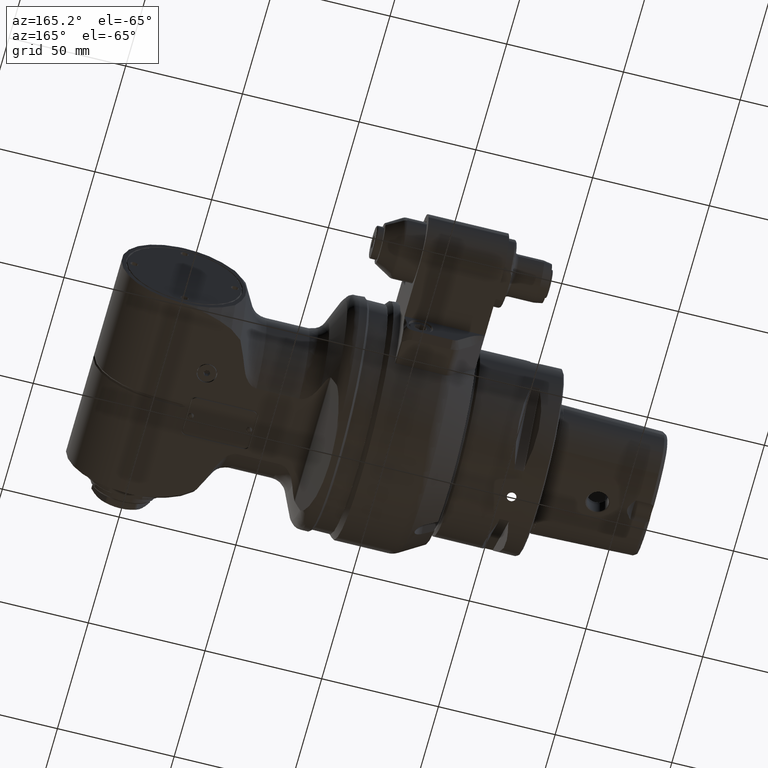
[diagram: clean part render]
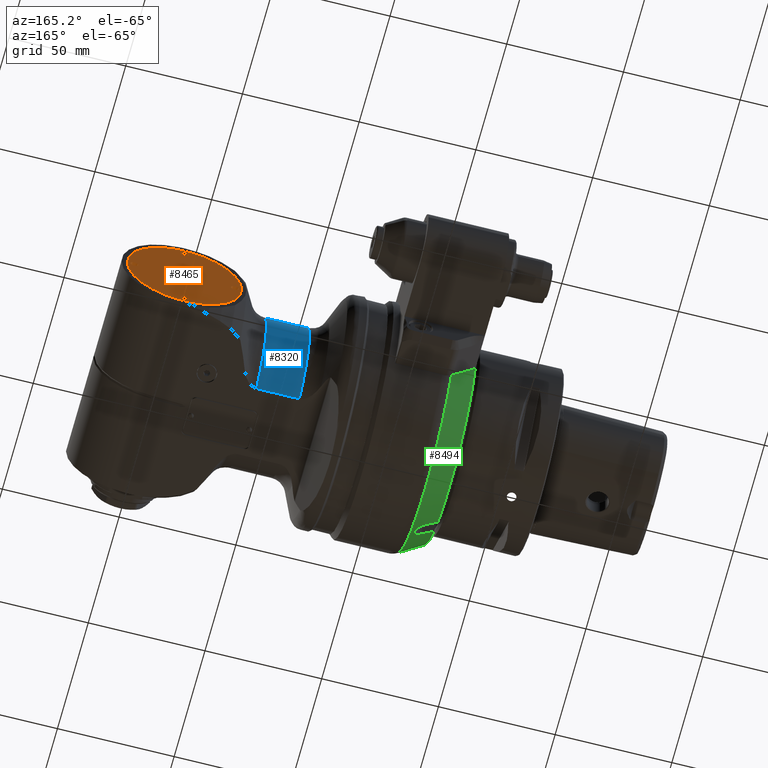
[diagram: same view with three faces highlighted in distinct colors, each labeled with its STEP entity id]
A machine part, auxiliary view with three faces highlighted in distinct colors.
Their STEP definitions:

[orange] entity #8465 — the highlighted planar face has unit normal (0, -1, -0).
#238=FACE_BOUND('',#1822,.T.);
#239=FACE_BOUND('',#1823,.T.);
#240=FACE_BOUND('',#1824,.T.);
#241=FACE_BOUND('',#1825,.T.);
#852=CIRCLE('',#9213,24.5);
#853=CIRCLE('',#9215,1.6);
#854=CIRCLE('',#9216,1.6);
#855=CIRCLE('',#9217,1.6);
#856=CIRCLE('',#9218,1.6);
#1279=FACE_OUTER_BOUND('',#1821,.T.);
#1821=EDGE_LOOP('',(#6313));
#1822=EDGE_LOOP('',(#6314));
#1823=EDGE_LOOP('',(#6315));
#1824=EDGE_LOOP('',(#6316));
#1825=EDGE_LOOP('',(#6317));
#3635=VERTEX_POINT('',#13618);
#3636=VERTEX_POINT('',#13622);
#3637=VERTEX_POINT('',#13624);
#3638=VERTEX_POINT('',#13626);
#3639=VERTEX_POINT('',#13628);
#4622=EDGE_CURVE('',#3635,#3635,#852,.T.);
#4623=EDGE_CURVE('',#3636,#3636,#853,.T.);
#4624=EDGE_CURVE('',#3637,#3637,#854,.T.);
#4625=EDGE_CURVE('',#3638,#3638,#855,.T.);
#4626=EDGE_CURVE('',#3639,#3639,#856,.T.);
#6313=ORIENTED_EDGE('',*,*,#4622,.T.);
#6314=ORIENTED_EDGE('',*,*,#4623,.T.);
#6315=ORIENTED_EDGE('',*,*,#4624,.T.);
#6316=ORIENTED_EDGE('',*,*,#4625,.T.);
#6317=ORIENTED_EDGE('',*,*,#4626,.T.);
#8125=PLANE('',#9214);
#8465=ADVANCED_FACE('',(#1279,#238,#239,#240,#241),#8125,.F.);
#9213=AXIS2_PLACEMENT_3D('',#13620,#10657,#10658);
#9214=AXIS2_PLACEMENT_3D('',#13621,#10659,#10660);
#9215=AXIS2_PLACEMENT_3D('',#13623,#10661,#10662);
#9216=AXIS2_PLACEMENT_3D('',#13625,#10663,#10664);
#9217=AXIS2_PLACEMENT_3D('',#13627,#10665,#10666);
#9218=AXIS2_PLACEMENT_3D('',#13629,#10667,#10668);
#10657=DIRECTION('center_axis',(0.,1.,0.));
#10658=DIRECTION('ref_axis',(1.,0.,0.));
#10659=DIRECTION('center_axis',(0.,-1.,0.));
#10660=DIRECTION('ref_axis',(-1.,0.,0.));
#10661=DIRECTION('center_axis',(0.,-1.,0.));
#10662=DIRECTION('ref_axis',(0.,0.,1.));
#10663=DIRECTION('center_axis',(0.,-1.,0.));
#10664=DIRECTION('ref_axis',(0.,0.,1.));
#10665=DIRECTION('center_axis',(0.,-1.,0.));
#10666=DIRECTION('ref_axis',(0.,0.,1.));
#10667=DIRECTION('center_axis',(0.,-1.,0.));
#10668=DIRECTION('ref_axis',(0.,0.,1.));
#13618=CARTESIAN_POINT('',(114.5,45.,0.));
#13620=CARTESIAN_POINT('Origin',(90.,45.,0.));
#13621=CARTESIAN_POINT('Origin',(68.675,45.,0.));
#13622=CARTESIAN_POINT('',(90.,45.,-23.1));
#13623=CARTESIAN_POINT('Origin',(90.,45.,-21.5));
#13624=CARTESIAN_POINT('',(68.5,45.,-1.6));
#13625=CARTESIAN_POINT('Origin',(68.5,45.,0.));
#13626=CARTESIAN_POINT('',(90.,45.,19.9));
#13627=CARTESIAN_POINT('Origin',(90.,45.,21.5));
#13628=CARTESIAN_POINT('',(111.5,45.,-1.6));
#13629=CARTESIAN_POINT('Origin',(111.5,45.,0.));

[blue] entity #8320 — the highlighted cylindrical surface (partial cylindrical patch) has radius 32 mm, axis along (-1, -0, 0).
#575=CYLINDRICAL_SURFACE('',#8929,32.);
#723=CIRCLE('',#8927,32.);
#725=CIRCLE('',#8930,32.);
#1134=FACE_OUTER_BOUND('',#1657,.T.);
#1657=EDGE_LOOP('',(#5661,#5662,#5663,#5664));
#2238=LINE('',#12387,#2805);
#2256=LINE('',#12728,#2823);
#2805=VECTOR('',#9850,18.39109797347);
#2823=VECTOR('',#9942,18.39109797347);
#3386=VERTEX_POINT('',#12371);
#3387=VERTEX_POINT('',#12386);
#3442=VERTEX_POINT('',#12714);
#3443=VERTEX_POINT('',#12727);
#4231=EDGE_CURVE('',#3387,#3386,#2238,.T.);
#4304=EDGE_CURVE('',#3443,#3442,#2256,.T.);
#4331=EDGE_CURVE('',#3387,#3442,#723,.T.);
#4333=EDGE_CURVE('',#3443,#3386,#725,.T.);
#5661=ORIENTED_EDGE('',*,*,#4331,.F.);
#5662=ORIENTED_EDGE('',*,*,#4231,.T.);
#5663=ORIENTED_EDGE('',*,*,#4333,.F.);
#5664=ORIENTED_EDGE('',*,*,#4304,.T.);
#8320=ADVANCED_FACE('',(#1134),#575,.T.);
#8927=AXIS2_PLACEMENT_3D('',#12859,#9965,#9966);
#8929=AXIS2_PLACEMENT_3D('',#12861,#9969,#9970);
#8930=AXIS2_PLACEMENT_3D('',#12862,#9971,#9972);
#9850=DIRECTION('',(1.,0.,0.));
#9942=DIRECTION('',(-1.,0.,0.));
#9965=DIRECTION('center_axis',(-1.,0.,0.));
#9966=DIRECTION('ref_axis',(0.,0.484122918275906,0.875000000000012));
#9969=DIRECTION('center_axis',(-1.,0.,0.));
#9970=DIRECTION('ref_axis',(0.,1.,1.22464679914735E-16));
#9971=DIRECTION('center_axis',(1.,0.,0.));
#9972=DIRECTION('ref_axis',(0.,1.,0.));
#12371=CARTESIAN_POINT('',(51.38119784648,15.49193338483,28.));
#12386=CARTESIAN_POINT('',(32.99009987301,15.49193338483,28.));
#12387=CARTESIAN_POINT('',(32.99009987301,15.49193338483,28.));
#12714=CARTESIAN_POINT('',(32.99009987301,15.49193338483,-28.));
#12727=CARTESIAN_POINT('',(51.38119784648,15.49193338483,-28.));
#12728=CARTESIAN_POINT('',(51.38119784648,15.49193338483,-28.));
#12859=CARTESIAN_POINT('Origin',(32.99009987301,0.,0.));
#12861=CARTESIAN_POINT('Origin',(41.64644709714,0.,0.));
#12862=CARTESIAN_POINT('Origin',(51.38119784648,0.,0.));

[green] entity #8494 — the highlighted conical surface has half-angle 30 deg.
#131=CONICAL_SURFACE('',#9274,46.96410161514,0.523598775598299);
#348=(
BOUNDED_CURVE()
B_SPLINE_CURVE(2,(#13730,#13731,#13732),.UNSPECIFIED.,.F.,.F.)
B_SPLINE_CURVE_WITH_KNOTS((3,3),(-2.43290769105801,-0.320305328668483),
 .UNSPECIFIED.)
CURVE()
GEOMETRIC_REPRESENTATION_ITEM()
RATIONAL_B_SPLINE_CURVE((1.03252076511009,1.03062027413364,1.00749895945509))
REPRESENTATION_ITEM('')
);
#453=B_SPLINE_CURVE_WITH_KNOTS('',3,(#13851,#13852,#13853,#13854,#13855,
#13856,#13857,#13858,#13859,#13860),.UNSPECIFIED.,.F.,.F.,(4,3,3,4),(0.,
0.3333333333333,0.6666666666667,1.),.UNSPECIFIED.);
#456=B_SPLINE_CURVE_WITH_KNOTS('',3,(#13913,#13914,#13915,#13916,#13917,
#13918,#13919,#13920,#13921,#13922,#13923,#13924,#13925,#13926,#13927,#13928,
#13929,#13930),.UNSPECIFIED.,.F.,.F.,(4,2,2,2,2,2,2,2,4),(1.11206982951625,
1.24885677734264,1.4029266724495,1.5444028479349,1.68587902342029,1.82735519890569,
1.96883137439109,2.12290126949794,2.25968821732541),.UNSPECIFIED.);
#458=B_SPLINE_CURVE_WITH_KNOTS('',3,(#13952,#13953,#13954,#13955,#13956,
#13957,#13958,#13959,#13960,#13961),.UNSPECIFIED.,.F.,.F.,(4,3,3,4),(0.,
0.3333333333333,0.6666666666667,1.),.UNSPECIFIED.);
#459=B_SPLINE_CURVE_WITH_KNOTS('',3,(#13967,#13968,#13969,#13970,#13971,
#13972,#13973,#13974,#13975,#13976),.UNSPECIFIED.,.F.,.F.,(4,3,3,4),(0.,
0.3333333333333,0.6666666666667,1.),.UNSPECIFIED.);
#883=CIRCLE('',#9275,49.92820323028);
#884=CIRCLE('',#9276,44.);
#885=CIRCLE('',#9277,44.);
#1308=FACE_OUTER_BOUND('',#1859,.T.);
#1859=EDGE_LOOP('',(#6463,#6464,#6465,#6466,#6467,#6468,#6469,#6470));
#3661=VERTEX_POINT('',#13718);
#3662=VERTEX_POINT('',#13729);
#3683=VERTEX_POINT('',#13848);
#3684=VERTEX_POINT('',#13850);
#3697=VERTEX_POINT('',#13911);
#3698=VERTEX_POINT('',#13912);
#3702=VERTEX_POINT('',#13951);
#3703=VERTEX_POINT('',#13965);
#4659=EDGE_CURVE('',#3661,#3662,#348,.T.);
#4686=EDGE_CURVE('',#3684,#3683,#453,.T.);
#4704=EDGE_CURVE('',#3697,#3698,#456,.F.);
#4711=EDGE_CURVE('',#3697,#3702,#458,.T.);
#4713=EDGE_CURVE('',#3684,#3661,#883,.T.);
#4714=EDGE_CURVE('',#3703,#3683,#884,.T.);
#4715=EDGE_CURVE('',#3703,#3698,#459,.T.);
#4716=EDGE_CURVE('',#3662,#3702,#885,.T.);
#6463=ORIENTED_EDGE('',*,*,#4713,.F.);
#6464=ORIENTED_EDGE('',*,*,#4686,.T.);
#6465=ORIENTED_EDGE('',*,*,#4714,.F.);
#6466=ORIENTED_EDGE('',*,*,#4715,.T.);
#6467=ORIENTED_EDGE('',*,*,#4704,.F.);
#6468=ORIENTED_EDGE('',*,*,#4711,.T.);
#6469=ORIENTED_EDGE('',*,*,#4716,.F.);
#6470=ORIENTED_EDGE('',*,*,#4659,.F.);
#8494=ADVANCED_FACE('',(#1308),#131,.T.);
#9274=AXIS2_PLACEMENT_3D('',#13963,#10823,#10824);
#9275=AXIS2_PLACEMENT_3D('',#13964,#10825,#10826);
#9276=AXIS2_PLACEMENT_3D('',#13966,#10827,#10828);
#9277=AXIS2_PLACEMENT_3D('',#13977,#10829,#10830);
#10823=DIRECTION('center_axis',(1.,0.,0.));
#10824=DIRECTION('ref_axis',(0.,-1.,0.));
#10825=DIRECTION('center_axis',(1.,0.,0.));
#10826=DIRECTION('ref_axis',(0.,-0.999548602989596,-0.0300431400080999));
#10827=DIRECTION('center_axis',(-1.,0.,0.));
#10828=DIRECTION('ref_axis',(0.,-0.567304004296905,-0.823508449688707));
#10829=DIRECTION('center_axis',(-1.,0.,0.));
#10830=DIRECTION('ref_axis',(0.,0.948863636363632,-0.315686235979311));
#13718=CARTESIAN_POINT('',(-29.23205080757,41.75,-27.38180011986));
#13729=CARTESIAN_POINT('',(-39.5,41.74999999999,-13.89019438316));
#13730=CARTESIAN_POINT('Ctrl Pts',(-29.2320508075673,41.75,-27.3818001198562));
#13731=CARTESIAN_POINT('Ctrl Pts',(-36.0442956678564,41.75,-20.2102413126131));
#13732=CARTESIAN_POINT('Ctrl Pts',(-39.4999999999632,41.75,-13.8901943831554));
#13848=CARTESIAN_POINT('',(-39.5,-43.97442438509,-1.5));
#13850=CARTESIAN_POINT('',(-29.2320595617708,-49.9056607292726,-1.50000007595379));
#13851=CARTESIAN_POINT('Ctrl Pts',(-29.23206831446,-49.90565567486,-1.5));
#13852=CARTESIAN_POINT('Ctrl Pts',(-30.37293045262,-49.24668115316,-1.5));
#13853=CARTESIAN_POINT('Ctrl Pts',(-31.5138242319948,-48.5876765558151,
-1.5));
#13854=CARTESIAN_POINT('Ctrl Pts',(-32.6547122553555,-47.928662020786,-1.5));
#13855=CARTESIAN_POINT('Ctrl Pts',(-33.7956002787165,-47.2696474857567,
-1.5));
#13856=CARTESIAN_POINT('Ctrl Pts',(-34.9364825460635,-46.6106230130433,
-1.5));
#13857=CARTESIAN_POINT('Ctrl Pts',(-36.077363540237,-45.9515842405615,-1.5));
#13858=CARTESIAN_POINT('Ctrl Pts',(-37.2182445344102,-45.2925454680799,
-1.5));
#13859=CARTESIAN_POINT('Ctrl Pts',(-38.35912425541,-44.63349239583,-1.5));
#13860=CARTESIAN_POINT('Ctrl Pts',(-39.5,-43.97442438509,-1.5));
#13911=CARTESIAN_POINT('',(-34.5,-20.34687855495,-42.24182743261));
#13912=CARTESIAN_POINT('',(-34.5,-26.40905638145,-38.74182743261));
#13913=CARTESIAN_POINT('Ctrl Pts',(-34.5000000000002,-26.4090563814456,
-38.7418274326129));
#13914=CARTESIAN_POINT('Ctrl Pts',(-34.0992085079157,-26.5250786273062,
-38.9427838572518));
#13915=CARTESIAN_POINT('Ctrl Pts',(-33.6780271021362,-26.5877455833705,
-39.1945532832522));
#13916=CARTESIAN_POINT('Ctrl Pts',(-32.8336229766582,-26.5711996809164,
-39.7934207779667));
#13917=CARTESIAN_POINT('Ctrl Pts',(-32.416786404141,-26.4721822625297,-40.1489075806805));
#13918=CARTESIAN_POINT('Ctrl Pts',(-31.7689100689263,-26.1383338430384,
-40.8117265913294));
#13919=CARTESIAN_POINT('Ctrl Pts',(-31.4858969585476,-25.8928265156274,
-41.1623315039927));
#13920=CARTESIAN_POINT('Ctrl Pts',(-31.1011571537054,-25.2551263794943,
-41.8163473322267));
#13921=CARTESIAN_POINT('Ctrl Pts',(-31.,-24.8621451840586,-42.1193241407055));
#13922=CARTESIAN_POINT('Ctrl Pts',(-31.,-24.0453321040545,-42.5909113923235));
#13923=CARTESIAN_POINT('Ctrl Pts',(-31.1011571537054,-23.5864558934365,
-42.779754686541));
#13924=CARTESIAN_POINT('Ctrl Pts',(-31.4858969585476,-22.7012115036422,
-43.0050112903121));
#13925=CARTESIAN_POINT('Ctrl Pts',(-31.7689100689263,-22.2748250788787,
-43.0423244163336));
#13926=CARTESIAN_POINT('Ctrl Pts',(-32.416786404141,-21.5338827677997,-43.000036123302));
#13927=CARTESIAN_POINT('Ctrl Pts',(-32.8336229766582,-21.1765134567462,
-42.908044321685));
#13928=CARTESIAN_POINT('Ctrl Pts',(-33.6780271021394,-20.6496060415937,
-42.6229397461805));
#13929=CARTESIAN_POINT('Ctrl Pts',(-34.0992085079223,-20.4629008008123,
-42.4427838572491));
#13930=CARTESIAN_POINT('Ctrl Pts',(-34.5000000000096,-20.3468785549518,
-42.2418274326083));
#13951=CARTESIAN_POINT('',(-39.5,-18.89919836257,-39.7343717863));
#13952=CARTESIAN_POINT('Ctrl Pts',(-34.5000000000021,-20.3468785549516,
-42.2418274326133));
#13953=CARTESIAN_POINT('Ctrl Pts',(-35.0555636796788,-20.1860524218991,
-41.9632683989681));
#13954=CARTESIAN_POINT('Ctrl Pts',(-35.6111251834313,-20.0252176577258,
-41.6846944543344));
#13955=CARTESIAN_POINT('Ctrl Pts',(-36.1666839961781,-19.864373839952,-41.4061048113106));
#13956=CARTESIAN_POINT('Ctrl Pts',(-36.7222428089251,-19.7035300221781,
-41.1275151682867));
#13957=CARTESIAN_POINT('Ctrl Pts',(-37.2777989309903,-19.5426771511998,
-40.8489098273047));
#13958=CARTESIAN_POINT('Ctrl Pts',(-37.8333517949414,-19.381814745264,-40.5702879469552));
#13959=CARTESIAN_POINT('Ctrl Pts',(-38.3889046588924,-19.2209523393283,
-40.2916660666057));
#13960=CARTESIAN_POINT('Ctrl Pts',(-38.9444542651007,-19.0600803989606,
-40.0130276473512));
#13961=CARTESIAN_POINT('Ctrl Pts',(-39.5000000000014,-18.8991983625711,
-39.7343717863022));
#13963=CARTESIAN_POINT('Origin',(-34.36602540378,0.,0.));
#13964=CARTESIAN_POINT('Origin',(-29.23205080757,0.,0.));
#13965=CARTESIAN_POINT('',(-39.5,-24.96137618907,-36.2343717863));
#13966=CARTESIAN_POINT('Origin',(-39.5,0.,0.));
#13967=CARTESIAN_POINT('Ctrl Pts',(-39.4999999999995,-24.9613761890695,
-36.2343717862992));
#13968=CARTESIAN_POINT('Ctrl Pts',(-38.9444542651011,-25.1222582254511,
-36.5130276473516));
#13969=CARTESIAN_POINT('Ctrl Pts',(-38.3889046588926,-25.2831302048165,
-36.7916660440905));
#13970=CARTESIAN_POINT('Ctrl Pts',(-37.8333517949412,-25.4439926282826,
-37.070287914319));
#13971=CARTESIAN_POINT('Ctrl Pts',(-37.2777989309897,-25.6048550517487,
-37.3489097845476));
#13972=CARTESIAN_POINT('Ctrl Pts',(-36.7222428089239,-25.7657079191777,
-37.6275151275794));
#13973=CARTESIAN_POINT('Ctrl Pts',(-36.166683996177,-25.9265517183818,-37.9061047813243));
#13974=CARTESIAN_POINT('Ctrl Pts',(-35.6111251834304,-26.0873955175858,
-38.1846944350692));
#13975=CARTESIAN_POINT('Ctrl Pts',(-35.0555636796788,-26.2482302483888,
-38.4632683989682));
#13976=CARTESIAN_POINT('Ctrl Pts',(-34.5,-26.40905638145,-38.74182743261));
#13977=CARTESIAN_POINT('Origin',(-39.5,0.,0.));